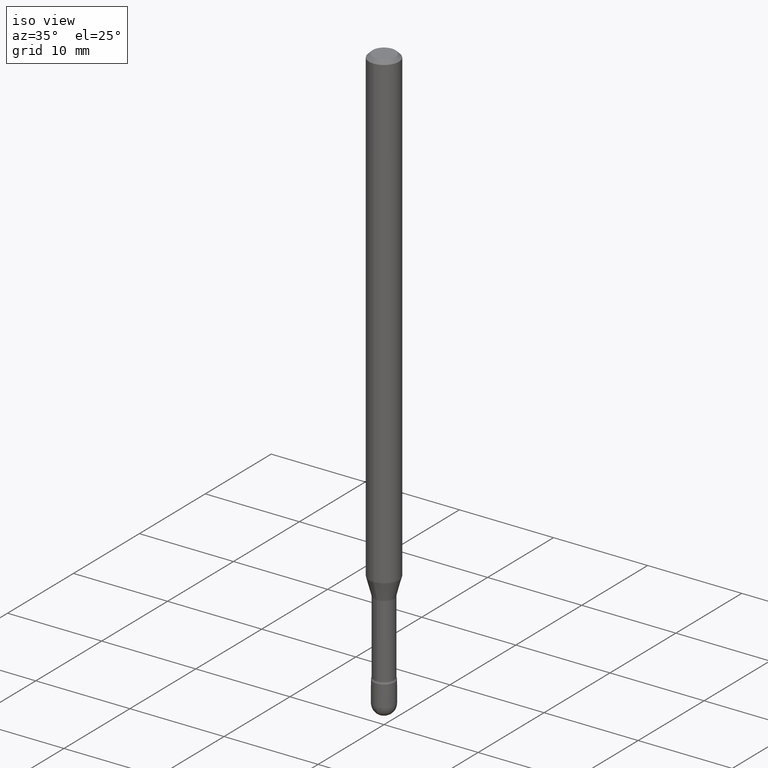
[diagram: clean part render]
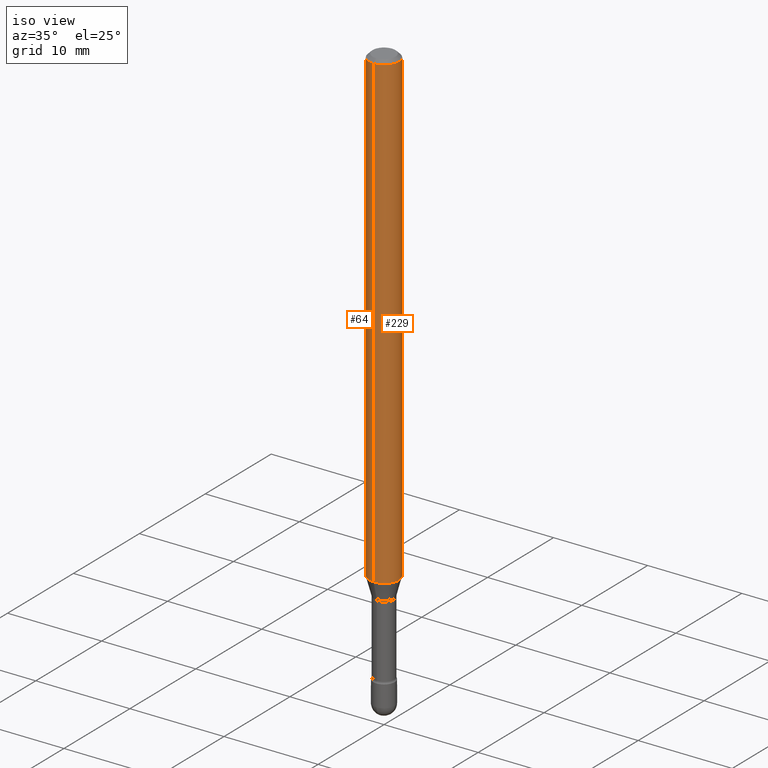
[diagram: same view with one multi-face feature highlighted, each face labeled with its STEP entity id]
A machine part, iso view. The highlighted faces form ONE feature: a constant-radius fillet chain: 2 tangent blend faces with common blend radius 1.5875 mm. The faces share edges in the B-rep.
Their STEP definitions:
[1] entity #64 (Cylinder):
#4 = DIRECTION ( 'NONE',  ( -2.445415862453792294E-29, 3.491557157279800917E-15, 1.000000000000000000 ) ) ;
#34 = VECTOR ( 'NONE', #497, 39.37007874015748143 ) ;
#41 = CARTESIAN_POINT ( 'NONE',  ( 4.440892098501112297E-16, 0.06249999999999995837, -0.01500000000000030129 ) ) ;
#50 = CARTESIAN_POINT ( 'NONE',  ( 3.668123793680708585E-31, -5.237335735919729601E-17, -0.01500000000000008271 ) ) ;
#54 = ORIENTED_EDGE ( 'NONE', *, *, #135, .T. ) ;
#64 = ADVANCED_FACE ( 'NONE', ( #123 ), #385, .T. ) ;
#85 = CARTESIAN_POINT ( 'NONE',  ( 4.440892098501110325E-16, 0.06249999999999313743, -1.974612573687109629 ) ) ;
#88 = ORIENTED_EDGE ( 'NONE', *, *, #244, .F. ) ;
#100 = LINE ( 'NONE', #222, #493 ) ;
#110 = CARTESIAN_POINT ( 'NONE',  ( -4.364351673553431052E-16, -0.06250000000000686950, -1.974612573687108963 ) ) ;
#112 = CIRCLE ( 'NONE', #199, 0.06250000000000000000 ) ;
#123 = FACE_OUTER_BOUND ( 'NONE', #142, .T. ) ;
#131 = LINE ( 'NONE', #388, #34 ) ;
#135 = EDGE_CURVE ( 'NONE', #486, #417, #131, .T. ) ;
#140 = DIRECTION ( 'NONE',  ( -6.982962677686265922E-15, -1.000000000000000000, 3.483106191921935554E-15 ) ) ;
#142 = EDGE_LOOP ( 'NONE', ( #88, #171, #54, #459 ) ) ;
#167 = CIRCLE ( 'NONE', #317, 0.06250000000000000000 ) ;
#171 = ORIENTED_EDGE ( 'NONE', *, *, #292, .T. ) ;
#199 = AXIS2_PLACEMENT_3D ( 'NONE', #305, #453, #539 ) ;
#222 = CARTESIAN_POINT ( 'NONE',  ( 4.440892098500625669E-16, 0.06250000000000000000, 2.598510765612585059E-16 ) ) ;
#233 = DIRECTION ( 'NONE',  ( -2.445415862453792294E-29, 3.491557157279800522E-15, 1.000000000000000000 ) ) ;
#244 = EDGE_CURVE ( 'NONE', #340, #326, #100, .T. ) ;
#285 = CARTESIAN_POINT ( 'NONE',  ( -4.364351673553912750E-16, -0.06250000000000005551, -0.01499999999999986587 ) ) ;
#292 = EDGE_CURVE ( 'NONE', #340, #486, #112, .T. ) ;
#304 = DIRECTION ( 'NONE',  ( -6.982962677686265922E-15, -1.000000000000000000, 3.491557157279800522E-15 ) ) ;
#305 = CARTESIAN_POINT ( 'NONE',  ( 4.828748909895165270E-29, -6.894472664511913322E-15, -1.974612573687109185 ) ) ;
#317 = AXIS2_PLACEMENT_3D ( 'NONE', #50, #233, #140 ) ;
#326 = VERTEX_POINT ( 'NONE', #41 ) ;
#340 = VERTEX_POINT ( 'NONE', #85 ) ;
#385 = CYLINDRICAL_SURFACE ( 'NONE', #469, 0.06250000000000000000 ) ;
#388 = CARTESIAN_POINT ( 'NONE',  ( -4.364351673553916201E-16, -0.06250000000000000000, 6.962957212212335712E-16 ) ) ;
#417 = VERTEX_POINT ( 'NONE', #285 ) ;
#453 = DIRECTION ( 'NONE',  ( -2.445415862453792294E-29, 3.491557157279800522E-15, 1.000000000000000000 ) ) ;
#459 = ORIENTED_EDGE ( 'NONE', *, *, #506, .F. ) ;
#469 = AXIS2_PLACEMENT_3D ( 'NONE', #480, #511, #304 ) ;
#480 = CARTESIAN_POINT ( 'NONE',  ( -1.169113584055446105E-44, 1.669184350826100908E-30, 4.780733988912460139E-16 ) ) ;
#486 = VERTEX_POINT ( 'NONE', #110 ) ;
#493 = VECTOR ( 'NONE', #4, 39.37007874015748143 ) ;
#497 = DIRECTION ( 'NONE',  ( -2.445415862453792294E-29, 3.491557157279800917E-15, 1.000000000000000000 ) ) ;
#506 = EDGE_CURVE ( 'NONE', #326, #417, #167, .T. ) ;
#511 = DIRECTION ( 'NONE',  ( -2.445415862453792294E-29, 3.491557157279800522E-15, 1.000000000000000000 ) ) ;
#539 = DIRECTION ( 'NONE',  ( -6.982962677686265922E-15, -1.000000000000000000, 4.370956789862821150E-15 ) ) ;
[2] entity #229 (Cylinder):
#4 = DIRECTION ( 'NONE',  ( -2.445415862453792294E-29, 3.491557157279800917E-15, 1.000000000000000000 ) ) ;
#34 = VECTOR ( 'NONE', #497, 39.37007874015748143 ) ;
#38 = EDGE_LOOP ( 'NONE', ( #519, #223, #444, #91 ) ) ;
#41 = CARTESIAN_POINT ( 'NONE',  ( 4.440892098501112297E-16, 0.06249999999999995837, -0.01500000000000030129 ) ) ;
#46 = DIRECTION ( 'NONE',  ( -6.982962677686265922E-15, -1.000000000000000000, 3.483106191921935554E-15 ) ) ;
#85 = CARTESIAN_POINT ( 'NONE',  ( 4.440892098501110325E-16, 0.06249999999999313743, -1.974612573687109629 ) ) ;
#91 = ORIENTED_EDGE ( 'NONE', *, *, #135, .F. ) ;
#99 = EDGE_CURVE ( 'NONE', #417, #326, #288, .T. ) ;
#100 = LINE ( 'NONE', #222, #493 ) ;
#110 = CARTESIAN_POINT ( 'NONE',  ( -4.364351673553431052E-16, -0.06250000000000686950, -1.974612573687108963 ) ) ;
#114 = CARTESIAN_POINT ( 'NONE',  ( 3.668123793680708585E-31, -5.237335735919729601E-17, -0.01500000000000008271 ) ) ;
#131 = LINE ( 'NONE', #388, #34 ) ;
#135 = EDGE_CURVE ( 'NONE', #486, #417, #131, .T. ) ;
#137 = DIRECTION ( 'NONE',  ( -6.982962677686265922E-15, -1.000000000000000000, 3.491557157279800522E-15 ) ) ;
#138 = CIRCLE ( 'NONE', #470, 0.06250000000000000000 ) ;
#178 = DIRECTION ( 'NONE',  ( -2.445415862453792294E-29, 3.491557157279800522E-15, 1.000000000000000000 ) ) ;
#179 = AXIS2_PLACEMENT_3D ( 'NONE', #114, #178, #46 ) ;
#212 = DIRECTION ( 'NONE',  ( -6.982962677686265922E-15, -1.000000000000000000, 4.370956789862821150E-15 ) ) ;
#218 = DIRECTION ( 'NONE',  ( -2.445415862453792294E-29, 3.491557157279800522E-15, 1.000000000000000000 ) ) ;
#222 = CARTESIAN_POINT ( 'NONE',  ( 4.440892098500625669E-16, 0.06250000000000000000, 2.598510765612585059E-16 ) ) ;
#223 = ORIENTED_EDGE ( 'NONE', *, *, #244, .T. ) ;
#229 = ADVANCED_FACE ( 'NONE', ( #542 ), #353, .T. ) ;
#230 = CARTESIAN_POINT ( 'NONE',  ( -1.169113584055446105E-44, 1.669184350826100908E-30, 4.780733988912460139E-16 ) ) ;
#244 = EDGE_CURVE ( 'NONE', #340, #326, #100, .T. ) ;
#258 = CARTESIAN_POINT ( 'NONE',  ( 4.828748909895165270E-29, -6.894472664511913322E-15, -1.974612573687109185 ) ) ;
#271 = DIRECTION ( 'NONE',  ( -2.445415862453792294E-29, 3.491557157279800522E-15, 1.000000000000000000 ) ) ;
#285 = CARTESIAN_POINT ( 'NONE',  ( -4.364351673553912750E-16, -0.06250000000000005551, -0.01499999999999986587 ) ) ;
#288 = CIRCLE ( 'NONE', #179, 0.06250000000000000000 ) ;
#326 = VERTEX_POINT ( 'NONE', #41 ) ;
#336 = EDGE_CURVE ( 'NONE', #486, #340, #138, .T. ) ;
#340 = VERTEX_POINT ( 'NONE', #85 ) ;
#353 = CYLINDRICAL_SURFACE ( 'NONE', #412, 0.06250000000000000000 ) ;
#388 = CARTESIAN_POINT ( 'NONE',  ( -4.364351673553916201E-16, -0.06250000000000000000, 6.962957212212335712E-16 ) ) ;
#412 = AXIS2_PLACEMENT_3D ( 'NONE', #230, #218, #137 ) ;
#417 = VERTEX_POINT ( 'NONE', #285 ) ;
#444 = ORIENTED_EDGE ( 'NONE', *, *, #99, .F. ) ;
#470 = AXIS2_PLACEMENT_3D ( 'NONE', #258, #271, #212 ) ;
#486 = VERTEX_POINT ( 'NONE', #110 ) ;
#493 = VECTOR ( 'NONE', #4, 39.37007874015748143 ) ;
#497 = DIRECTION ( 'NONE',  ( -2.445415862453792294E-29, 3.491557157279800917E-15, 1.000000000000000000 ) ) ;
#519 = ORIENTED_EDGE ( 'NONE', *, *, #336, .T. ) ;
#542 = FACE_OUTER_BOUND ( 'NONE', #38, .T. ) ;